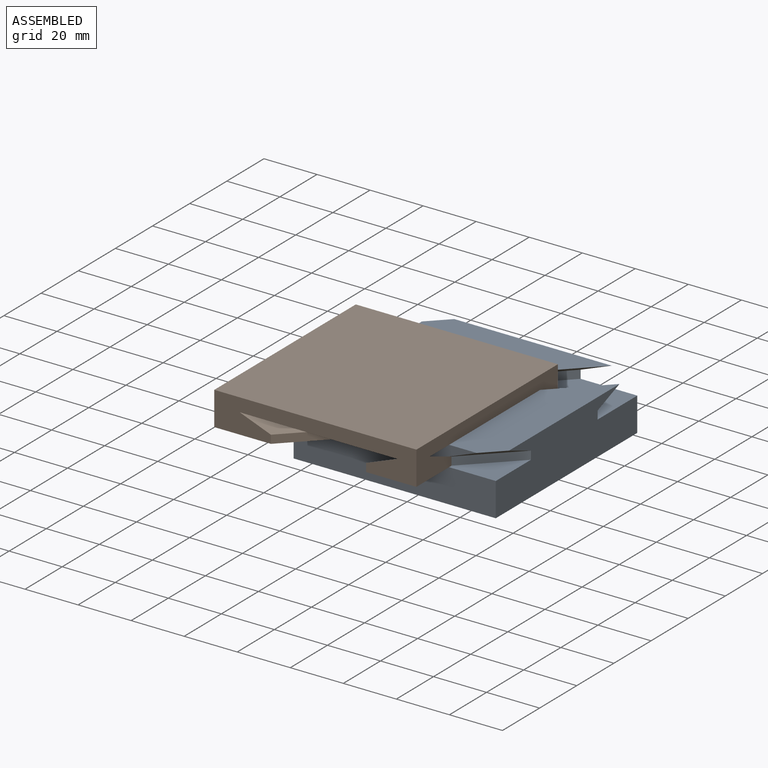
[diagram: assembled view]
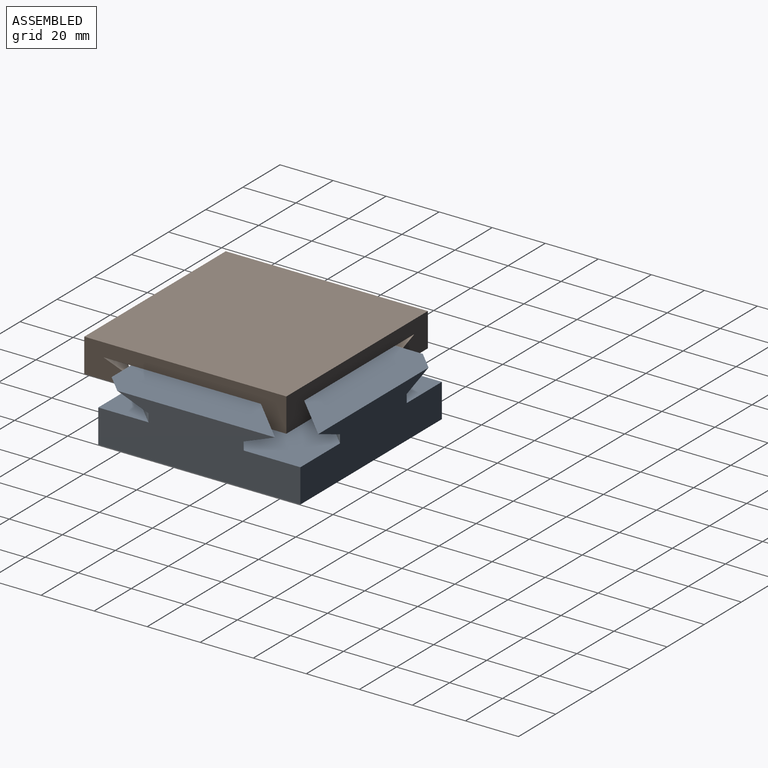
[diagram: assembled view, second angle]
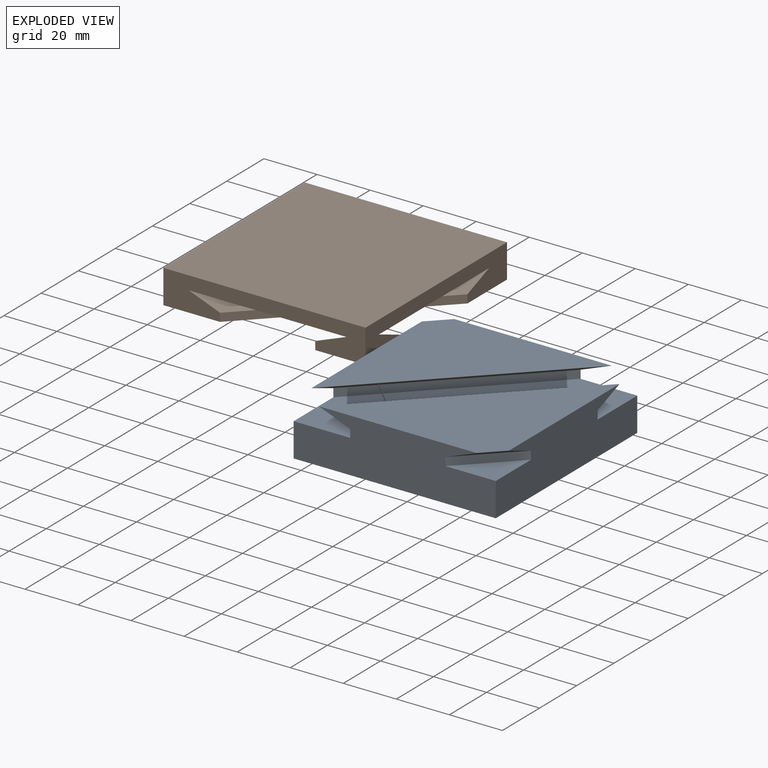
[diagram: exploded view]
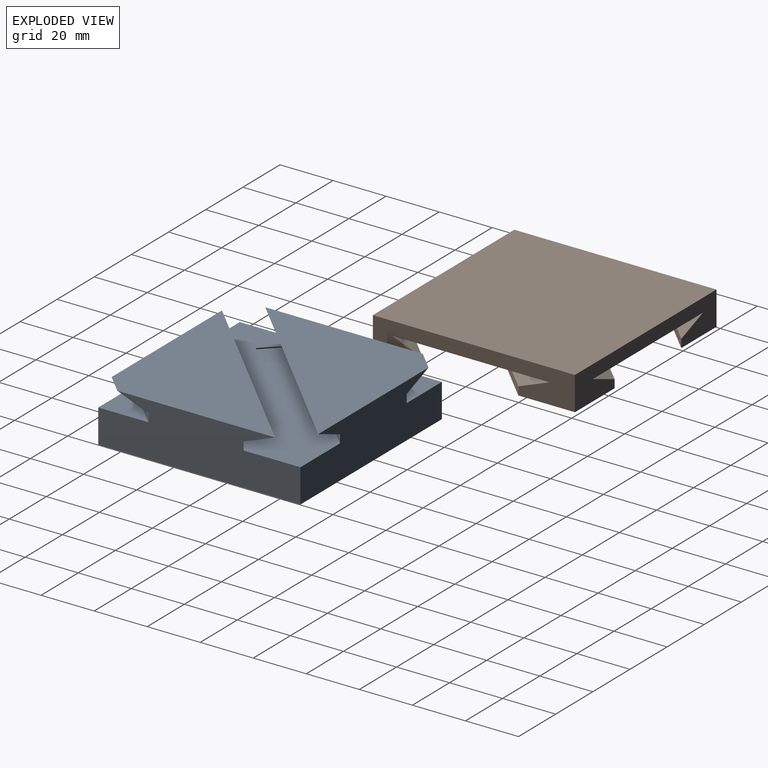
[diagram: exploded view, second angle]
ASSEMBLY  parts=2 mates=2
PART A: 18 faces, bbox 76.2x76.2x20.3 mm
  f0: plane 18.93x18.93mm, normal (0,0,1), area 179.3mm2, adj f2,f5,f16
  f1: plane 76.2x76.2mm, normal (0,0,1), area 2797.4mm2, adj f2,f3,f4,f5,f11,f13
  f2: plane 76.2x20.32mm, normal (1,0,0), area 1294.4mm2, adj f0,f1,f3,f5,f7,f13,f14,f15
  f3: plane 76.2x20.32mm, normal (0,1,0), area 1294.4mm2, adj f1,f2,f4,f6,f7,f8,f9,f10
  f4: plane 76.2x20.32mm, normal (-1,0,0), area 1294.4mm2, adj f1,f3,f5,f6,f7,f8,f9,f10
  f5: plane 76.2x20.32mm, normal (0,-1,0), area 1294.4mm2, adj f0,f1,f2,f4,f7,f13,f14,f15
  f6: plane 18.93x18.93mm, normal (0,0,1), area 179.3mm2, adj f3,f4,f8
  f7: plane 76.2x76.2mm, normal (0,0,-1), area 5806.4mm2, adj f2,f3,f4,f5
  f8: plane 18.93x18.93mm, normal (-0.71,0.71,0), area 83.5mm2, adj f3,f4,f6,f9
  f9: plane 18.93x18.93mm, normal (-0.34,0.34,-0.88), area 174.5mm2, adj f3,f4,f8,f10
  f10: plane 66.61x66.61mm, normal (0,0,1), area 2192.3mm2, adj f3,f4,f9,f12
  f11: plane 54.86x54.86mm, normal (0.71,-0.71,0), area 241.8mm2, adj f1,f3,f4,f12
  f12: plane 66.61x66.61mm, normal (0.34,-0.34,-0.88), area 811.6mm2, adj f3,f4,f10,f11
  f13: plane 54.86x54.86mm, normal (-0.71,0.71,0), area 241.8mm2, adj f1,f2,f5,f14
  f14: plane 66.61x66.61mm, normal (-0.34,0.34,-0.88), area 811.6mm2, adj f2,f5,f13,f15
  f15: plane 66.61x66.61mm, normal (0,0,1), area 2192.3mm2, adj f2,f5,f14,f17
  f16: plane 18.93x18.93mm, normal (0.71,-0.71,0), area 83.5mm2, adj f0,f2,f5,f17
  f17: plane 18.93x18.93mm, normal (0.34,-0.34,-0.88), area 174.5mm2, adj f2,f5,f15,f16
PART B: 18 faces, bbox 76.2x76.2x12.7 mm
  f0: plane 76.2x12.7mm, normal (1,0,0), area 641.1mm2, adj f1,f3,f4,f11,f12,f13,f14,f15
  f1: plane 76.2x12.7mm, normal (0,1,0), area 641.1mm2, adj f0,f2,f4,f5,f6,f7,f8,f9
  f2: plane 76.2x12.7mm, normal (-1,0,0), area 641.1mm2, adj f1,f3,f4,f5,f6,f7,f8,f9
  f3: plane 76.2x12.7mm, normal (0,-1,0), area 641.1mm2, adj f0,f2,f4,f11,f12,f13,f14,f15
  f4: plane 76.2x76.2mm, normal (0,0,1), area 5806.4mm2, adj f0,f1,f2,f3
  f5: plane 54.86x54.86mm, normal (-0.71,0.71,0), area 241.8mm2, adj f1,f2,f10,f11
  f6: plane 18.93x18.93mm, normal (0,0,-1), area 179.3mm2, adj f1,f2,f7
  f7: plane 18.93x18.93mm, normal (0.71,-0.71,0), area 83.5mm2, adj f1,f2,f6,f8
  f8: plane 18.93x18.93mm, normal (0.34,-0.34,0.88), area 174.5mm2, adj f1,f2,f7,f9
  f9: plane 66.61x66.61mm, normal (0,0,-1), area 2192.3mm2, adj f1,f2,f8,f10
  f10: plane 66.61x66.61mm, normal (-0.34,0.34,0.88), area 811.6mm2, adj f1,f2,f5,f9
  f11: plane 76.2x76.2mm, normal (0,0,-1), area 2797.3mm2, adj f0,f1,f2,f3,f5,f12
  f12: plane 54.86x54.86mm, normal (0.71,-0.71,0), area 241.8mm2, adj f0,f3,f11,f13
  f13: plane 66.61x66.61mm, normal (0.34,-0.34,0.88), area 811.6mm2, adj f0,f3,f12,f14
  f14: plane 66.61x66.61mm, normal (0,0,-1), area 2192.3mm2, adj f0,f3,f13,f15
  f15: plane 18.93x18.93mm, normal (-0.34,0.34,0.88), area 174.5mm2, adj f0,f3,f14,f16
  f16: plane 18.93x18.93mm, normal (-0.71,0.71,0), area 83.5mm2, adj f0,f3,f15,f17
  f17: plane 18.93x18.93mm, normal (0,0,-1), area 179.3mm2, adj f0,f3,f16
PLACE A t=(33.7,-8.09,124.44)mm
PLACE B t=(16.1,-25.7,124.44)mm
MATE planar B.f5 <-> A.f11  axis (-0.71,0.71,0) through (5.42,-15.02,138.7)mm
MATE planar B.f11 <-> A.f1  axis (0,0,-1) through (16.1,-25.7,137.14)mm
